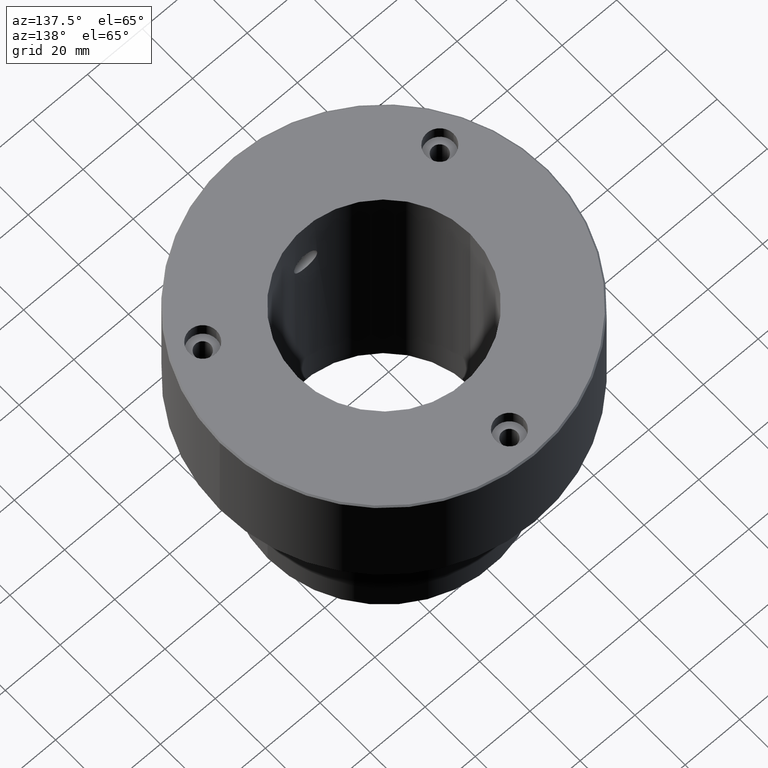
[diagram: clean part render]
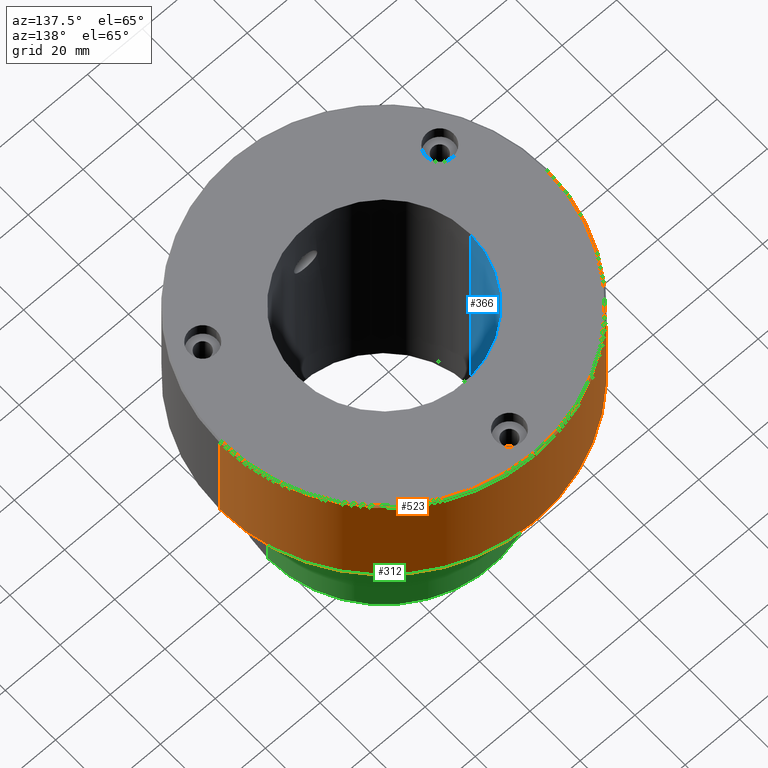
[diagram: same view with three faces highlighted in distinct colors, each labeled with its STEP entity id]
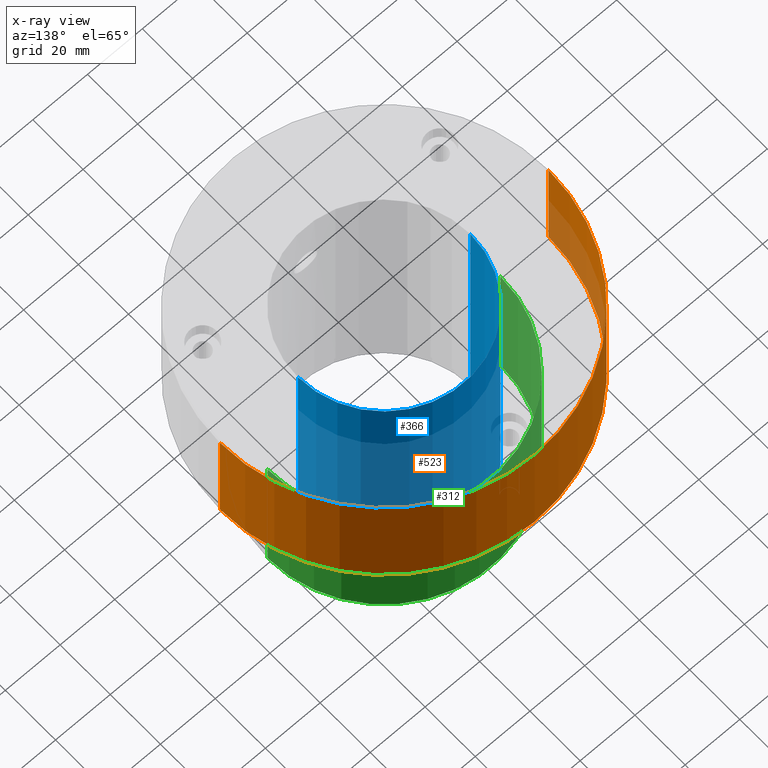
[diagram: x-ray of the same camera — body ghosted, the three highlighted faces saturated]
A machine part, auxiliary view with three faces highlighted in distinct colors.
The next image is the same camera in x-ray (body ghosted, the three faces saturated) — at least one of them is partly hidden behind the body in this view.
Their STEP definitions:

[orange] entity #523 — the highlighted cylindrical surface (partial cylindrical patch) has radius 60 mm, axis along (-0, -0, 1).
#3 = CARTESIAN_POINT ( 'NONE',  ( 0.000000000000000000, 0.000000000000000000, -43.00000000000000000 ) ) ;
#8 = ORIENTED_EDGE ( 'NONE', *, *, #87, .T. ) ;
#16 = DIRECTION ( 'NONE',  ( 1.000000000000000000, 0.000000000000000000, 0.000000000000000000 ) ) ;
#87 = EDGE_CURVE ( 'NONE', #127, #1077, #1042, .T. ) ;
#99 = DIRECTION ( 'NONE',  ( 1.000000000000000000, 0.000000000000000000, 0.000000000000000000 ) ) ;
#114 = CARTESIAN_POINT ( 'NONE',  ( -60.00000000000000000, 7.347880794884118356E-15, -43.00000000000000000 ) ) ;
#127 = VERTEX_POINT ( 'NONE', #921 ) ;
#238 = AXIS2_PLACEMENT_3D ( 'NONE', #588, #965, #99 ) ;
#261 = CARTESIAN_POINT ( 'NONE',  ( -60.00000000000000000, 7.347880794884118356E-15, -0.4999999999999796274 ) ) ;
#379 = ORIENTED_EDGE ( 'NONE', *, *, #819, .F. ) ;
#397 = DIRECTION ( 'NONE',  ( -0.000000000000000000, -0.000000000000000000, 1.000000000000000000 ) ) ;
#422 = EDGE_LOOP ( 'NONE', ( #8, #486, #727, #379 ) ) ;
#424 = CARTESIAN_POINT ( 'NONE',  ( 0.000000000000000000, 0.000000000000000000, -0.4999999999999796274 ) ) ;
#443 = DIRECTION ( 'NONE',  ( -0.000000000000000000, -0.000000000000000000, 1.000000000000000000 ) ) ;
#459 = LINE ( 'NONE', #625, #951 ) ;
#486 = ORIENTED_EDGE ( 'NONE', *, *, #1164, .T. ) ;
#523 = ADVANCED_FACE ( 'NONE', ( #773 ), #1165, .T. ) ;
#546 = CARTESIAN_POINT ( 'NONE',  ( -60.00000000000000000, 7.347880794884118356E-15, 0.000000000000000000 ) ) ;
#547 = DIRECTION ( 'NONE',  ( 1.000000000000000000, 0.000000000000000000, 0.000000000000000000 ) ) ;
#588 = CARTESIAN_POINT ( 'NONE',  ( 0.000000000000000000, 0.000000000000000000, 0.000000000000000000 ) ) ;
#625 = CARTESIAN_POINT ( 'NONE',  ( 60.00000000000000000, 0.000000000000000000, 0.000000000000000000 ) ) ;
#671 = CIRCLE ( 'NONE', #1051, 60.00000000000000000 ) ;
#716 = VERTEX_POINT ( 'NONE', #261 ) ;
#727 = ORIENTED_EDGE ( 'NONE', *, *, #1068, .T. ) ;
#773 = FACE_OUTER_BOUND ( 'NONE', #422, .T. ) ;
#819 = EDGE_CURVE ( 'NONE', #127, #903, #459, .T. ) ;
#866 = DIRECTION ( 'NONE',  ( 0.000000000000000000, 0.000000000000000000, -1.000000000000000000 ) ) ;
#871 = AXIS2_PLACEMENT_3D ( 'NONE', #3, #397, #547 ) ;
#882 = VECTOR ( 'NONE', #443, 1000.000000000000000 ) ;
#903 = VERTEX_POINT ( 'NONE', #1135 ) ;
#921 = CARTESIAN_POINT ( 'NONE',  ( 60.00000000000000000, 0.000000000000000000, -43.00000000000000000 ) ) ;
#951 = VECTOR ( 'NONE', #1223, 1000.000000000000000 ) ;
#965 = DIRECTION ( 'NONE',  ( -0.000000000000000000, -0.000000000000000000, 1.000000000000000000 ) ) ;
#999 = LINE ( 'NONE', #546, #882 ) ;
#1042 = CIRCLE ( 'NONE', #871, 60.00000000000000000 ) ;
#1051 = AXIS2_PLACEMENT_3D ( 'NONE', #424, #866, #16 ) ;
#1068 = EDGE_CURVE ( 'NONE', #716, #903, #671, .T. ) ;
#1077 = VERTEX_POINT ( 'NONE', #114 ) ;
#1135 = CARTESIAN_POINT ( 'NONE',  ( 60.00000000000000000, 0.000000000000000000, -0.4999999999999796274 ) ) ;
#1164 = EDGE_CURVE ( 'NONE', #1077, #716, #999, .T. ) ;
#1165 = CYLINDRICAL_SURFACE ( 'NONE', #238, 60.00000000000000000 ) ;
#1223 = DIRECTION ( 'NONE',  ( -0.000000000000000000, -0.000000000000000000, 1.000000000000000000 ) ) ;

[blue] entity #366 — the highlighted cylindrical surface (partial cylindrical patch) has radius 31.5 mm, axis along (-0, -0, -1).
#20 = EDGE_CURVE ( 'NONE', #721, #328, #95, .T. ) ;
#59 = CIRCLE ( 'NONE', #392, 31.50000000000000000 ) ;
#72 = DIRECTION ( 'NONE',  ( -0.000000000000000000, -0.000000000000000000, -1.000000000000000000 ) ) ;
#84 = AXIS2_PLACEMENT_3D ( 'NONE', #972, #690, #1081 ) ;
#95 = LINE ( 'NONE', #791, #875 ) ;
#168 = CARTESIAN_POINT ( 'NONE',  ( -31.50000000000000000, 0.000000000000000000, 0.000000000000000000 ) ) ;
#206 = EDGE_CURVE ( 'NONE', #886, #328, #478, .T. ) ;
#241 = DIRECTION ( 'NONE',  ( -1.000000000000000000, 0.000000000000000000, 0.000000000000000000 ) ) ;
#298 = DIRECTION ( 'NONE',  ( -0.000000000000000000, -0.000000000000000000, -1.000000000000000000 ) ) ;
#328 = VERTEX_POINT ( 'NONE', #364 ) ;
#341 = CARTESIAN_POINT ( 'NONE',  ( 31.50000000000000000, 3.857637417314162689E-15, 0.000000000000000000 ) ) ;
#356 = DIRECTION ( 'NONE',  ( 0.000000000000000000, 0.000000000000000000, -1.000000000000000000 ) ) ;
#364 = CARTESIAN_POINT ( 'NONE',  ( 31.50000000000000000, 3.857637417314162689E-15, -95.00000000000000000 ) ) ;
#366 = ADVANCED_FACE ( 'NONE', ( #568 ), #1056, .F. ) ;
#392 = AXIS2_PLACEMENT_3D ( 'NONE', #823, #356, #241 ) ;
#393 = LINE ( 'NONE', #168, #708 ) ;
#478 = CIRCLE ( 'NONE', #84, 31.50000000000000000 ) ;
#495 = DIRECTION ( 'NONE',  ( -1.000000000000000000, 0.000000000000000000, 0.000000000000000000 ) ) ;
#568 = FACE_OUTER_BOUND ( 'NONE', #1241, .T. ) ;
#573 = CARTESIAN_POINT ( 'NONE',  ( 0.000000000000000000, 0.000000000000000000, 0.000000000000000000 ) ) ;
#690 = DIRECTION ( 'NONE',  ( 0.000000000000000000, 0.000000000000000000, -1.000000000000000000 ) ) ;
#693 = EDGE_CURVE ( 'NONE', #807, #721, #59, .T. ) ;
#708 = VECTOR ( 'NONE', #72, 1000.000000000000000 ) ;
#721 = VERTEX_POINT ( 'NONE', #341 ) ;
#791 = CARTESIAN_POINT ( 'NONE',  ( 31.50000000000000000, 3.857637417314162689E-15, 0.000000000000000000 ) ) ;
#807 = VERTEX_POINT ( 'NONE', #1199 ) ;
#823 = CARTESIAN_POINT ( 'NONE',  ( 0.000000000000000000, 0.000000000000000000, 0.000000000000000000 ) ) ;
#835 = AXIS2_PLACEMENT_3D ( 'NONE', #573, #298, #495 ) ;
#875 = VECTOR ( 'NONE', #1183, 1000.000000000000000 ) ;
#886 = VERTEX_POINT ( 'NONE', #934 ) ;
#893 = ORIENTED_EDGE ( 'NONE', *, *, #979, .T. ) ;
#934 = CARTESIAN_POINT ( 'NONE',  ( -31.50000000000000000, 0.000000000000000000, -95.00000000000000000 ) ) ;
#972 = CARTESIAN_POINT ( 'NONE',  ( 0.000000000000000000, 0.000000000000000000, -95.00000000000000000 ) ) ;
#979 = EDGE_CURVE ( 'NONE', #807, #886, #393, .T. ) ;
#995 = ORIENTED_EDGE ( 'NONE', *, *, #693, .F. ) ;
#1056 = CYLINDRICAL_SURFACE ( 'NONE', #835, 31.50000000000000000 ) ;
#1081 = DIRECTION ( 'NONE',  ( -1.000000000000000000, 0.000000000000000000, 0.000000000000000000 ) ) ;
#1120 = ORIENTED_EDGE ( 'NONE', *, *, #206, .T. ) ;
#1183 = DIRECTION ( 'NONE',  ( -0.000000000000000000, -0.000000000000000000, -1.000000000000000000 ) ) ;
#1199 = CARTESIAN_POINT ( 'NONE',  ( -31.50000000000000000, 0.000000000000000000, 0.000000000000000000 ) ) ;
#1208 = ORIENTED_EDGE ( 'NONE', *, *, #20, .F. ) ;
#1241 = EDGE_LOOP ( 'NONE', ( #1208, #995, #893, #1120 ) ) ;

[green] entity #312 — the highlighted cylindrical surface (partial cylindrical patch) has radius 42.5 mm, axis along (-0, -0, 1).
#150 = DIRECTION ( 'NONE',  ( -0.000000000000000000, -0.000000000000000000, 1.000000000000000000 ) ) ;
#152 = DIRECTION ( 'NONE',  ( -0.000000000000000000, -0.000000000000000000, 1.000000000000000000 ) ) ;
#154 = CARTESIAN_POINT ( 'NONE',  ( 0.000000000000000000, 0.000000000000000000, -43.00000000000000000 ) ) ;
#234 = VERTEX_POINT ( 'NONE', #1193 ) ;
#246 = EDGE_CURVE ( 'NONE', #427, #955, #909, .T. ) ;
#312 = ADVANCED_FACE ( 'NONE', ( #639 ), #348, .T. ) ;
#325 = VECTOR ( 'NONE', #1101, 1000.000000000000000 ) ;
#346 = DIRECTION ( 'NONE',  ( 1.000000000000000000, 0.000000000000000000, 0.000000000000000000 ) ) ;
#348 = CYLINDRICAL_SURFACE ( 'NONE', #440, 42.50000000000000000 ) ;
#409 = ORIENTED_EDGE ( 'NONE', *, *, #858, .F. ) ;
#414 = VECTOR ( 'NONE', #466, 1000.000000000000000 ) ;
#427 = VERTEX_POINT ( 'NONE', #761 ) ;
#440 = AXIS2_PLACEMENT_3D ( 'NONE', #1023, #152, #543 ) ;
#466 = DIRECTION ( 'NONE',  ( -0.000000000000000000, -0.000000000000000000, 1.000000000000000000 ) ) ;
#473 = CARTESIAN_POINT ( 'NONE',  ( -42.50000000000000000, 5.204748896376250896E-15, -99.50000000000000000 ) ) ;
#480 = VERTEX_POINT ( 'NONE', #1143 ) ;
#543 = DIRECTION ( 'NONE',  ( 1.000000000000000000, 0.000000000000000000, 0.000000000000000000 ) ) ;
#639 = FACE_OUTER_BOUND ( 'NONE', #840, .T. ) ;
#648 = DIRECTION ( 'NONE',  ( -1.000000000000000000, 0.000000000000000000, 0.000000000000000000 ) ) ;
#761 = CARTESIAN_POINT ( 'NONE',  ( 42.50000000000000000, 0.000000000000000000, -99.50000000000000000 ) ) ;
#780 = EDGE_CURVE ( 'NONE', #480, #234, #1161, .T. ) ;
#797 = EDGE_CURVE ( 'NONE', #955, #234, #1117, .T. ) ;
#828 = AXIS2_PLACEMENT_3D ( 'NONE', #154, #150, #346 ) ;
#840 = EDGE_LOOP ( 'NONE', ( #1231, #1174, #843, #409 ) ) ;
#842 = LINE ( 'NONE', #849, #414 ) ;
#843 = ORIENTED_EDGE ( 'NONE', *, *, #780, .F. ) ;
#849 = CARTESIAN_POINT ( 'NONE',  ( 42.50000000000000000, 0.000000000000000000, 0.000000000000000000 ) ) ;
#858 = EDGE_CURVE ( 'NONE', #427, #480, #842, .T. ) ;
#909 = CIRCLE ( 'NONE', #1222, 42.50000000000000000 ) ;
#918 = DIRECTION ( 'NONE',  ( -0.000000000000000000, -0.000000000000000000, 1.000000000000000000 ) ) ;
#955 = VERTEX_POINT ( 'NONE', #473 ) ;
#1023 = CARTESIAN_POINT ( 'NONE',  ( 0.000000000000000000, 0.000000000000000000, 0.000000000000000000 ) ) ;
#1029 = CARTESIAN_POINT ( 'NONE',  ( 0.000000000000000000, 0.000000000000000000, -99.50000000000000000 ) ) ;
#1101 = DIRECTION ( 'NONE',  ( -0.000000000000000000, -0.000000000000000000, 1.000000000000000000 ) ) ;
#1117 = LINE ( 'NONE', #1131, #325 ) ;
#1131 = CARTESIAN_POINT ( 'NONE',  ( -42.50000000000000000, 5.204748896376250896E-15, 0.000000000000000000 ) ) ;
#1143 = CARTESIAN_POINT ( 'NONE',  ( 42.50000000000000000, 0.000000000000000000, -43.00000000000000000 ) ) ;
#1161 = CIRCLE ( 'NONE', #828, 42.50000000000000000 ) ;
#1174 = ORIENTED_EDGE ( 'NONE', *, *, #797, .T. ) ;
#1193 = CARTESIAN_POINT ( 'NONE',  ( -42.50000000000000000, 5.204748896376250896E-15, -43.00000000000000000 ) ) ;
#1222 = AXIS2_PLACEMENT_3D ( 'NONE', #1029, #918, #648 ) ;
#1231 = ORIENTED_EDGE ( 'NONE', *, *, #246, .T. ) ;